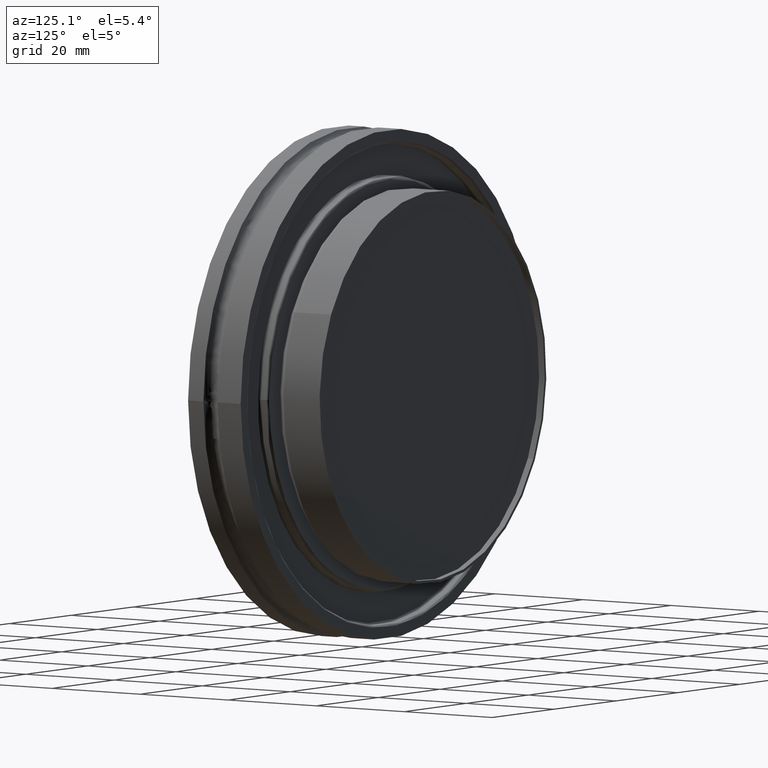
[diagram: clean part render]
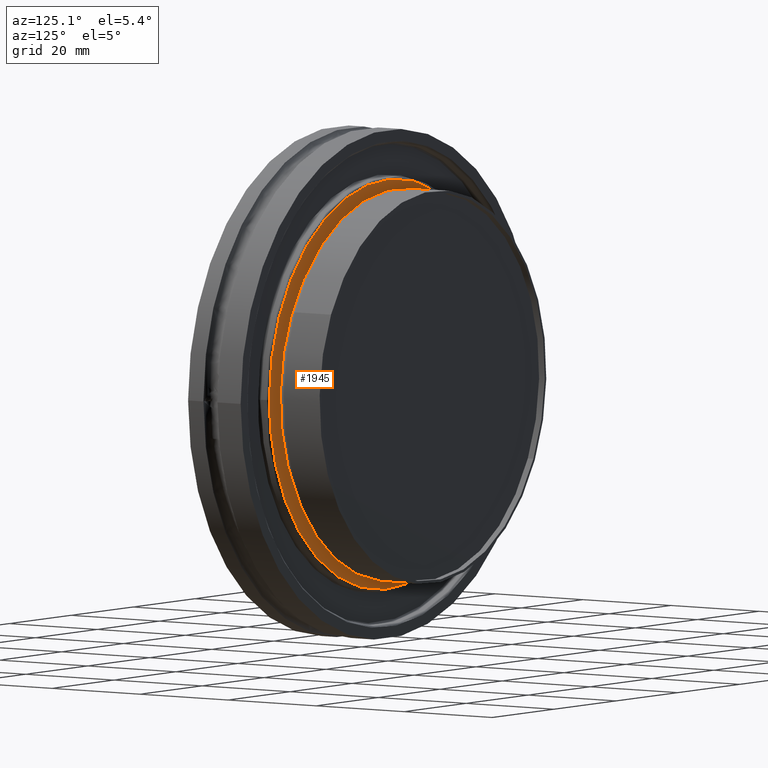
[diagram: same view with one face highlighted and labeled with its STEP entity id]
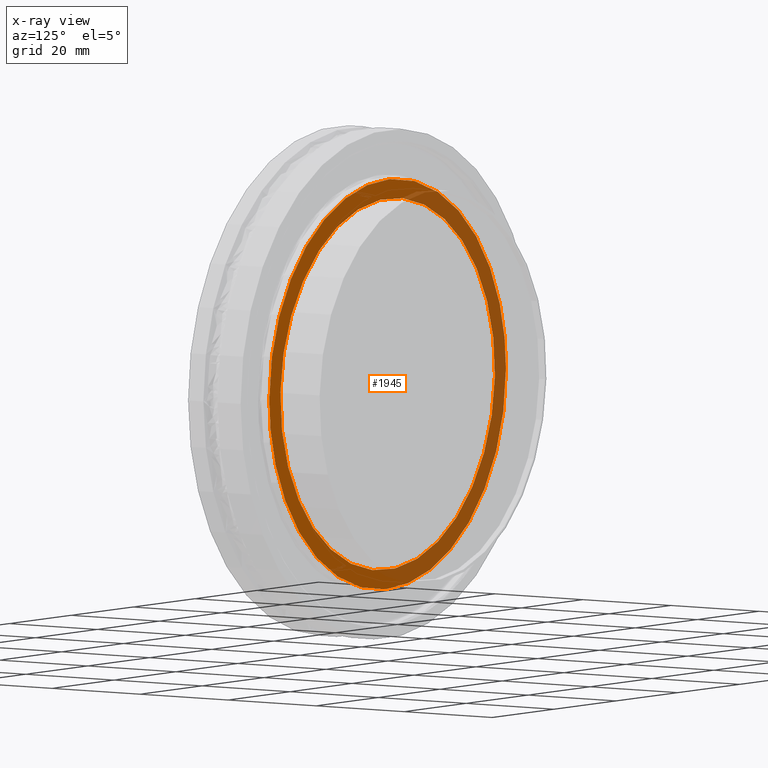
[diagram: x-ray of the same camera — body ghosted, the highlighted face saturated]
A machine part, auxiliary view. The second image highlights one B-rep face of the part: STEP entity #1945.
The next image is the same camera in x-ray: the body ghosted, the highlighted face saturated — about 45% of this face is hidden behind the body in this view.
In plain terms, the highlighted planar face has unit normal (0, -1, -0).
Its self-contained STEP definition (entity closure, byte-faithful):
#49 = AXIS2_PLACEMENT_3D ( 'NONE', #1421, #1413, #1412 ) ;
#96 = FACE_BOUND ( 'NONE', #465, .T. ) ;
#99 = FACE_OUTER_BOUND ( 'NONE', #477, .T. ) ;
#165 = CIRCLE ( 'NONE', #595, 1.365000000000000000 ) ;
#168 = CIRCLE ( 'NONE', #596, 1.365000000000000000 ) ;
#384 = ORIENTED_EDGE ( 'NONE', *, *, #749, .F. ) ;
#385 = ORIENTED_EDGE ( 'NONE', *, *, #669, .F. ) ;
#386 = ORIENTED_EDGE ( 'NONE', *, *, #740, .T. ) ;
#387 = ORIENTED_EDGE ( 'NONE', *, *, #742, .T. ) ;
#465 = EDGE_LOOP ( 'NONE', ( #386, #387 ) ) ;
#472 = VERTEX_POINT ( 'NONE', #850 ) ;
#476 = VERTEX_POINT ( 'NONE', #858 ) ;
#477 = EDGE_LOOP ( 'NONE', ( #384, #385 ) ) ;
#595 = AXIS2_PLACEMENT_3D ( 'NONE', #1910, #1909, #1908 ) ;
#596 = AXIS2_PLACEMENT_3D ( 'NONE', #1913, #1912, #1911 ) ;
#669 = EDGE_CURVE ( 'NONE', #476, #472, #1124, .T. ) ;
#740 = EDGE_CURVE ( 'NONE', #2009, #2002, #168, .T. ) ;
#742 = EDGE_CURVE ( 'NONE', #2002, #2009, #165, .T. ) ;
#749 = EDGE_CURVE ( 'NONE', #472, #476, #1119, .T. ) ;
#754 = CARTESIAN_POINT ( 'NONE',  ( -1.504999999999999900, 0.2350000000000000100, 0.0000000000000000000 ) ) ;
#755 = CARTESIAN_POINT ( 'NONE',  ( -1.504999999999999700, 0.2350000000000000400, 3.009999999999999300 ) ) ;
#760 = CARTESIAN_POINT ( 'NONE',  ( 1.505000000000000300, 0.2350000000000000400, 3.009999999999999300 ) ) ;
#770 = CARTESIAN_POINT ( 'NONE',  ( 1.504999999999999900, 0.2350000000000000100, -1.843093432716766300E-016 ) ) ;
#850 = CARTESIAN_POINT ( 'NONE',  ( -1.504999999999999900, 0.2350000000000000100, 0.0000000000000000000 ) ) ;
#858 = CARTESIAN_POINT ( 'NONE',  ( 1.504999999999999900, 0.2350000000000000100, -1.843093432716766300E-016 ) ) ;
#1119 =( BOUNDED_CURVE ( )  B_SPLINE_CURVE ( 3, ( #1891, #1890, #1885, #1884 ),
 .UNSPECIFIED., .F., .F. ) 
 B_SPLINE_CURVE_WITH_KNOTS ( ( 4, 4 ),
 ( 0.0000000000000000000, 0.5000000000000000000 ),
 .UNSPECIFIED. ) 
 CURVE ( )  GEOMETRIC_REPRESENTATION_ITEM ( )  RATIONAL_B_SPLINE_CURVE ( ( 1.000000000000000000, 0.3333333333333333700, 0.3333333333333333700, 1.000000000000000000 ) ) 
 REPRESENTATION_ITEM ( '' )  );
#1124 =( BOUNDED_CURVE ( )  B_SPLINE_CURVE ( 3, ( #770, #760, #755, #754 ),
 .UNSPECIFIED., .F., .T. ) 
 B_SPLINE_CURVE_WITH_KNOTS ( ( 4, 4 ),
 ( 0.5000000000000000000, 1.000000000000000000 ),
 .UNSPECIFIED. ) 
 CURVE ( )  GEOMETRIC_REPRESENTATION_ITEM ( )  RATIONAL_B_SPLINE_CURVE ( ( 1.000000000000000000, 0.3333333333333333700, 0.3333333333333333700, 1.000000000000000000 ) ) 
 REPRESENTATION_ITEM ( '' )  );
#1169 = CARTESIAN_POINT ( 'NONE',  ( -1.226483600122103100, 0.2350000000000001000, -0.5991351922826143600 ) ) ;
#1176 = CARTESIAN_POINT ( 'NONE',  ( 1.226483600122103100, 0.2350000000000001000, 0.5991351922826141400 ) ) ;
#1412 = DIRECTION ( 'NONE',  ( -1.000000000000000000, 0.0000000000000000000, -0.0000000000000000000 ) ) ;
#1413 = DIRECTION ( 'NONE',  ( 0.0000000000000000000, -1.000000000000000000, -0.0000000000000000000 ) ) ;
#1420 = PLANE ( 'NONE',  #49 ) ;
#1421 = CARTESIAN_POINT ( 'NONE',  ( 0.0000000000000000000, 0.2350000000000000100, 0.0000000000000000000 ) ) ;
#1884 = CARTESIAN_POINT ( 'NONE',  ( 1.504999999999999900, 0.2350000000000000100, -1.843093432716766300E-016 ) ) ;
#1885 = CARTESIAN_POINT ( 'NONE',  ( 1.504999999999999700, 0.2350000000000000400, -3.009999999999999300 ) ) ;
#1890 = CARTESIAN_POINT ( 'NONE',  ( -1.504999999999999700, 0.2350000000000000400, -3.009999999999999300 ) ) ;
#1891 = CARTESIAN_POINT ( 'NONE',  ( -1.504999999999999900, 0.2350000000000000100, 0.0000000000000000000 ) ) ;
#1908 = DIRECTION ( 'NONE',  ( 0.0000000000000000000, 0.0000000000000000000, -1.000000000000000000 ) ) ;
#1909 = DIRECTION ( 'NONE',  ( 0.0000000000000000000, -1.000000000000000000, 0.0000000000000000000 ) ) ;
#1910 = CARTESIAN_POINT ( 'NONE',  ( -7.433925218818083900E-018, 0.2350000000000001000, 1.708443747142329100E-019 ) ) ;
#1911 = DIRECTION ( 'NONE',  ( 0.0000000000000000000, 0.0000000000000000000, -1.000000000000000000 ) ) ;
#1912 = DIRECTION ( 'NONE',  ( 0.0000000000000000000, -1.000000000000000000, 0.0000000000000000000 ) ) ;
#1913 = CARTESIAN_POINT ( 'NONE',  ( -7.433925218818083900E-018, 0.2350000000000001000, 1.708443747142329100E-019 ) ) ;
#1945 = ADVANCED_FACE ( 'NONE', ( #99, #96 ), #1420, .F. ) ;
#2002 = VERTEX_POINT ( 'NONE', #1176 ) ;
#2009 = VERTEX_POINT ( 'NONE', #1169 ) ;